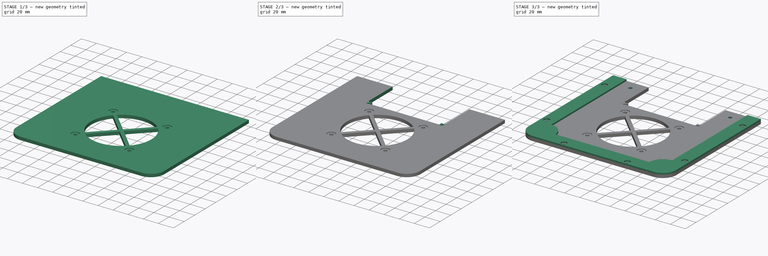
[diagram: build sequence overview — one tinted view per stage of 3, left to right]
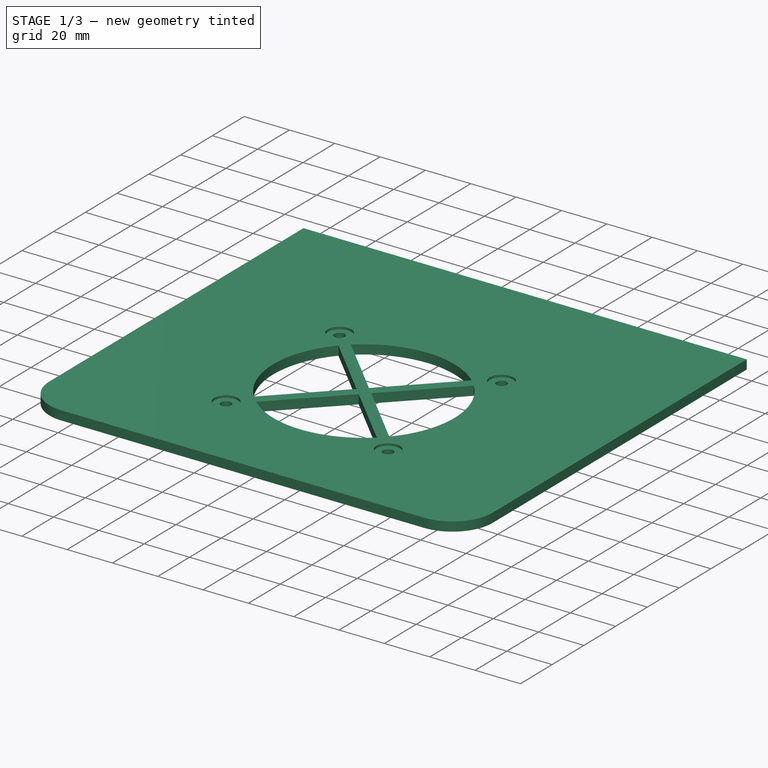
[diagram: stage 1 of 3 — iso view after this stage's code; geometry added in this stage tinted green]
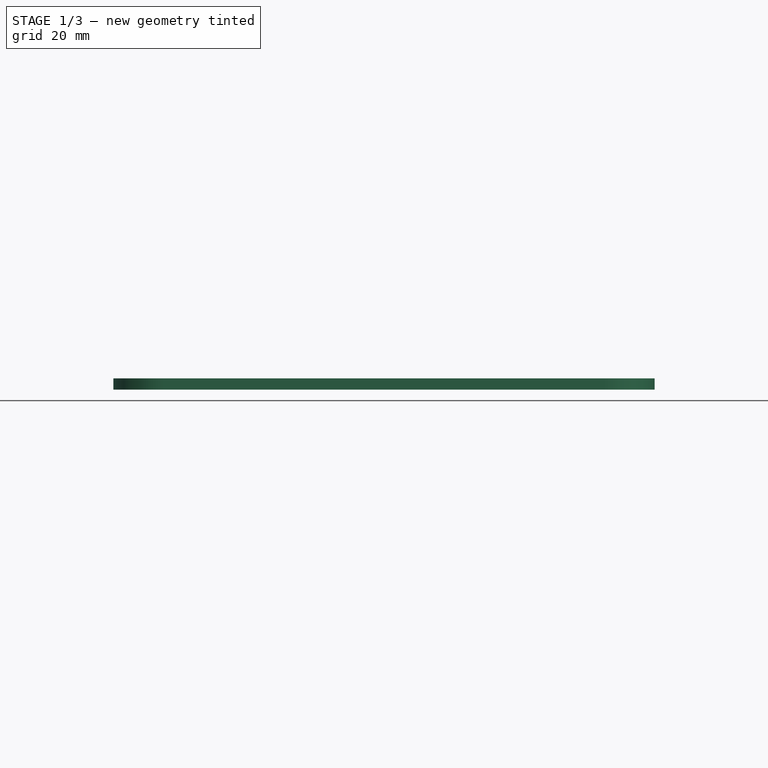
[diagram: stage 1 of 3 — front view after this stage's code; geometry added in this stage tinted green]
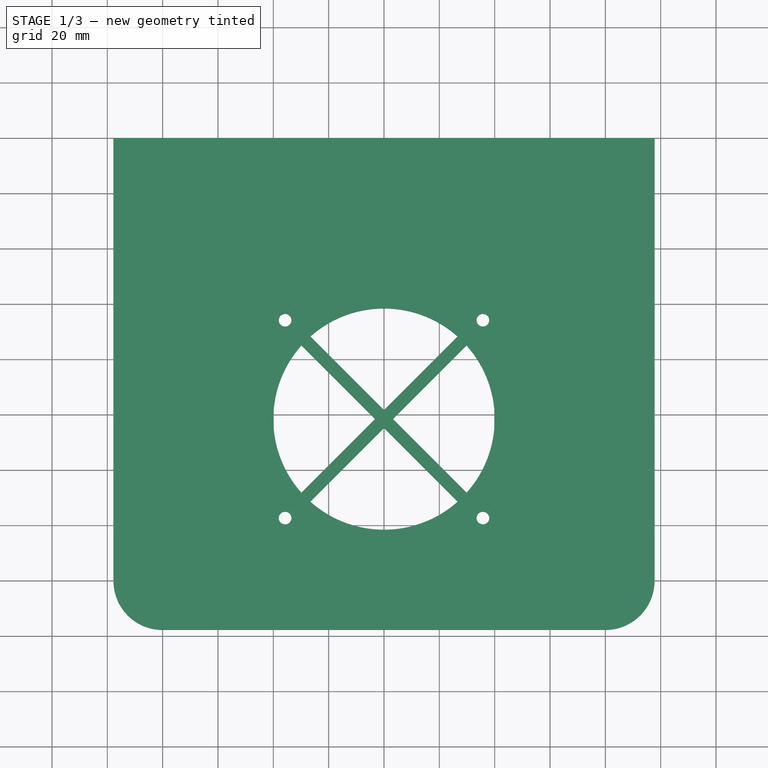
[diagram: stage 1 of 3 — top view after this stage's code; geometry added in this stage tinted green]
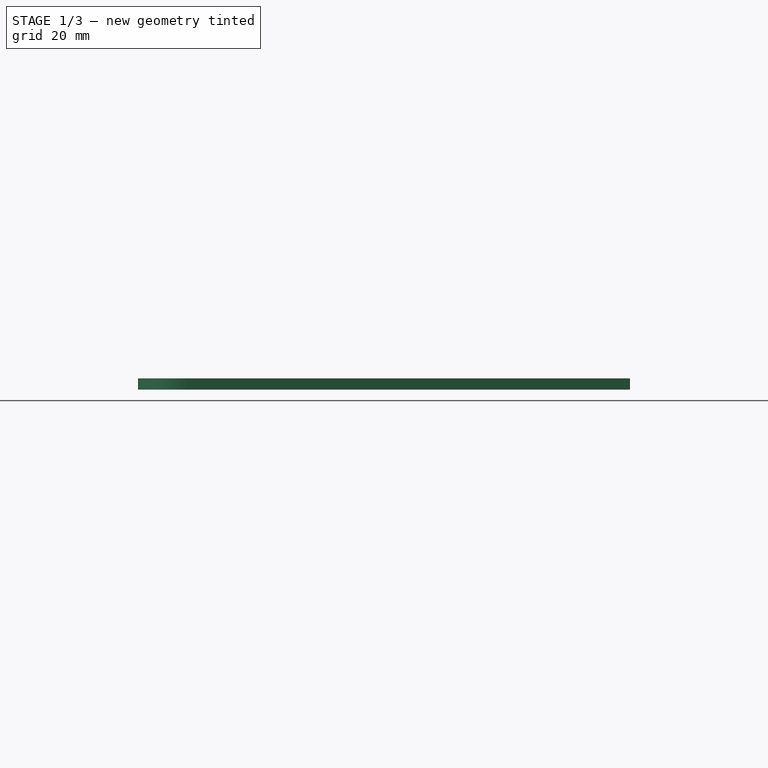
[diagram: stage 1 of 3 — right view after this stage's code; geometry added in this stage tinted green]
FCSTD DOCUMENT  (FreeCAD 0.18R16117 (Git))
Label: top1
License: All rights reserved
LicenseURL: http://en.wikipedia.org/wiki/All_rights_reserved
objects: Sketcher::SketchObject×8, PartDesign::Pocket×3, PartDesign::Hole×3, PartDesign::Pad×2, PartDesign::Body×1
note: 25 computed .brp shape members not serialized (recipe doc carries the construction recipe); baked Part::Feature solids carry a one-line shape summary decoded from their .brp

FEATURE [Sketcher::SketchObject] Sketch
  MapMode = 5
  Support = -> [XY_Plane]
  sketch-geometry (24):
    g0: LineSegment [constr] StartX=-80.01 StartY=80.01 StartZ=0 EndX=80.01 EndY=80.01 EndZ=0
    g1: LineSegment [constr] StartX=80.01 StartY=80.01 StartZ=0 EndX=80.01 EndY=-80.01 EndZ=0
    g2: LineSegment [constr] StartX=80.01 StartY=-80.01 StartZ=0 EndX=-80.01 EndY=-80.01 EndZ=0
    g3: LineSegment [constr] StartX=-80.01 StartY=-80.01 StartZ=0 EndX=-80.01 EndY=80.01 EndZ=0
    g4: LineSegment [constr] StartX=-80.01 StartY=-80.01 StartZ=0 EndX=80.01 EndY=-80.01 EndZ=0
    g5: LineSegment [constr] StartX=80.01 StartY=-80.01 StartZ=0 EndX=80.01 EndY=-97.79 EndZ=0
    g6: LineSegment [constr] StartX=80.01 StartY=-97.79 StartZ=0 EndX=-80.01 EndY=-97.79 EndZ=0
    g7: LineSegment [constr] StartX=-80.01 StartY=-97.79 StartZ=0 EndX=-80.01 EndY=-80.01 EndZ=0
    g8: LineSegment [constr] StartX=80.01 StartY=-80.01 StartZ=0 EndX=97.79 EndY=-80.01 EndZ=0
    g9: LineSegment [constr] StartX=97.79 StartY=-80.01 StartZ=0 EndX=97.79 EndY=80.01 EndZ=0
    g10: LineSegment [constr] StartX=97.79 StartY=80.01 StartZ=0 EndX=80.01 EndY=80.01 EndZ=0
    g11: LineSegment [constr] StartX=80.01 StartY=80.01 StartZ=0 EndX=80.01 EndY=-80.01 EndZ=0
    g12: LineSegment [constr] StartX=-80.01 StartY=-80.01 StartZ=0 EndX=-97.79 EndY=-80.01 EndZ=0
    g13: LineSegment [constr] StartX=-97.79 StartY=-80.01 StartZ=0 EndX=-97.79 EndY=80.01 EndZ=0
    g14: LineSegment [constr] StartX=-97.79 StartY=80.01 StartZ=0 EndX=-80.01 EndY=80.01 EndZ=0
    g15: LineSegment [constr] StartX=-80.01 StartY=80.01 StartZ=0 EndX=-80.01 EndY=-80.01 EndZ=0
    g16: LineSegment [constr] StartX=-80.01 StartY=80.01 StartZ=0 EndX=80.01 EndY=-80.01 EndZ=0
    g17: LineSegment [constr] StartX=80.01 StartY=80.01 StartZ=0 EndX=-80.01 EndY=-80.01 EndZ=0
    g18: LineSegment StartX=-97.79 StartY=80.01 StartZ=0 EndX=-97.79 EndY=-80.01 EndZ=0
    g19: LineSegment StartX=-80.01 StartY=-97.79 StartZ=0 EndX=80.01 EndY=-97.79 EndZ=0
    g20: ArcOfCircle CenterX=-80.01 CenterY=-80.01 CenterZ=0 NormalX=0 NormalY=0 NormalZ=1 AngleXU=0 Radius=17.78 StartAngle=3.14159 EndAngle=4.71239
    g21: ArcOfCircle CenterX=80.01 CenterY=-80.01 CenterZ=0 NormalX=0 NormalY=0 NormalZ=1 AngleXU=0 Radius=17.78 StartAngle=4.71239 EndAngle=6.28319
    g22: LineSegment StartX=97.79 StartY=-80.01 StartZ=0 EndX=97.79 EndY=80.01 EndZ=0
    g23: LineSegment StartX=-97.79 StartY=80.01 StartZ=0 EndX=97.79 EndY=80.01 EndZ=0
  constraints (59):
    c: Coincident(g0,g1)
    c: Coincident(g1,g2)
    c: Coincident(g2,g3)
    c: Coincident(g3,g0)
    c: Horizontal(g0)
    c: Vertical(g1)
    c: Coincident(g4,g5)
    c: Coincident(g5,g6)
    c: Coincident(g6,g7)
    c: Coincident(g7,g4)
    c: Vertical(g5)
    c: Vertical(g7)
    c: Coincident(g4,g2)
    c: Coincident(g8,g9)
    c: Coincident(g9,g10)
    c: Coincident(g10,g11)
    c: Coincident(g11,g8)
    c: Horizontal(g8)
    c: Horizontal(g10)
    c: Vertical(g9)
    c: Coincident(g8,g1)
    c: Coincident(g12,g13)
    c: Coincident(g13,g14)
    c: Coincident(g14,g15)
    c: Coincident(g15,g12)
    c: Horizontal(g12)
    c: Horizontal(g14)
    c: Vertical(g13)
    c: Coincident(g12,g2)
    c: Coincident(g14,g0)
    c: Coincident(g0,g10)
    c: Coincident(g4,g1)
    c: Coincident(g16,g0)
    c: Coincident(g16,g1)
    c: Coincident(g17,g0)
    c: Coincident(g17,g2)
    c: PointOnObject(g-1,g17)
    c: PointOnObject(g-1,g16)
    c: Equal(g12,g7)
    c: Equal(g7,g8)
    c: Distance(g0) = 160.02
    c: Distance(g10) = 17.78
    c: Coincident(g18,g13)
    c: Coincident(g18,g12)
    c: Equal(g1,g0)
    c: Equal(g0,g3)
    c: Equal(g3,g2)
    c: Coincident(g19,g6)
    c: Coincident(g19,g5)
    c: Coincident(g20,g2)
    c: Coincident(g20,g18)
    c: Coincident(g20,g19)
    c: Coincident(g21,g1)
    c: Coincident(g21,g19)
    c: Coincident(g21,g8)
    c: Coincident(g22,g21)
    c: Coincident(g22,g9)
    c: Coincident(g23,g18)
    c: Coincident(g23,g22)
FEATURE [PartDesign::Pad] Pad
  Length = 4.064
  Length2 = 100
  Profile = -> Sketch
  Type = 0
FEATURE [Sketcher::SketchObject] Sketch001
  ExternalGeometry = -> [Pad]
  MapMode = 5
  Placement = pos=(0,0,4.064) rot=(0,0,1;0rad)
  Support = -> [Pad]
  sketch-geometry (25):
    g0: LineSegment [constr] StartX=-97.79 StartY=-21.59 StartZ=0 EndX=1.42e-14 EndY=-21.59 EndZ=0
    g1: LineSegment [constr] StartX=1.56e-14 StartY=-21.59 StartZ=0 EndX=97.79 EndY=-21.59 EndZ=0
    g2: LineSegment [constr] StartX=1.56e-14 StartY=-21.59 StartZ=0 EndX=1.56e-14 EndY=-97.79 EndZ=0
    g3: Circle [constr] CenterX=1.56e-14 CenterY=-21.59 CenterZ=0 NormalX=0 NormalY=0 NormalZ=1 AngleXU=0 Radius=40.005
    g4: LineSegment [constr] StartX=-29.858 StartY=5.03514 StartZ=0 EndX=26.6251 EndY=-51.448 EndZ=0
    g5: LineSegment [constr] StartX=-26.6251 StartY=8.26803 StartZ=0 EndX=29.858 EndY=-48.2151 EndZ=0
    g6: LineSegment [constr] StartX=-29.858 StartY=-48.2151 StartZ=0 EndX=26.6251 EndY=8.26803 EndZ=0
    g7: LineSegment [constr] StartX=-26.6251 StartY=-51.448 StartZ=0 EndX=29.858 EndY=5.03514 EndZ=0
    g8: GeomPoint X=-3.23289 Y=-21.59 Z=0
    g9: GeomPoint X=3.23289 Y=-21.59 Z=0
    g10: GeomPoint X=1.56e-14 Y=-24.8229 Z=0
    g11: LineSegment [constr] StartX=1.56e-14 StartY=-21.59 StartZ=0 EndX=1.56e-14 EndY=18.415 EndZ=0
    g12: GeomPoint X=1.56e-14 Y=-18.3571 Z=0
    g13: ArcOfCircle CenterX=1.56e-14 CenterY=-21.59 CenterZ=0 NormalX=0 NormalY=0 NormalZ=1 AngleXU=0 Radius=40.005 StartAngle=2.41337 EndAngle=3.86982
    g14: ArcOfCircle CenterX=1.56e-14 CenterY=-21.59 CenterZ=0 NormalX=0 NormalY=0 NormalZ=1 AngleXU=0 Radius=40.005 StartAngle=0.842572 EndAngle=2.29902
    g15: ArcOfCircle CenterX=1.56e-14 CenterY=-21.59 CenterZ=0 NormalX=0 NormalY=0 NormalZ=1 AngleXU=0 Radius=40.005 StartAngle=5.55496 EndAngle=7.01141
    g16: ArcOfCircle CenterX=1.56e-14 CenterY=-21.59 CenterZ=0 NormalX=0 NormalY=0 NormalZ=1 AngleXU=0 Radius=40.005 StartAngle=3.98416 EndAngle=5.44061
    g17: LineSegment StartX=-29.858 StartY=-48.2151 StartZ=0 EndX=-3.23289 EndY=-21.59 EndZ=0
    g18: LineSegment StartX=-3.23289 StartY=-21.59 StartZ=0 EndX=-29.858 EndY=5.03514 EndZ=0
    g19: LineSegment StartX=-26.6251 StartY=8.26803 StartZ=0 EndX=1.42e-14 EndY=-18.3571 EndZ=0
    g20: LineSegment StartX=1.56e-14 StartY=-18.3571 StartZ=0 EndX=26.6251 EndY=8.26803 EndZ=0
    g21: LineSegment StartX=3.23289 StartY=-21.59 StartZ=0 EndX=29.858 EndY=5.03514 EndZ=0
    g22: LineSegment StartX=1.56e-14 StartY=-24.8229 StartZ=0 EndX=-26.6251 EndY=-51.448 EndZ=0
    g23: LineSegment StartX=1.56e-14 StartY=-24.8229 StartZ=0 EndX=26.6251 EndY=-51.448 EndZ=0
    g24: LineSegment StartX=3.23289 StartY=-21.59 StartZ=0 EndX=29.858 EndY=-48.2151 EndZ=0
  constraints (67):
    c: PointOnObject(g0,g-3)
    c: Horizontal(g0)
    c: Coincident(g1,g0)
    c: PointOnObject(g1,g-5)
    c: Horizontal(g1)
    c: Equal(g1,g0)
    c: Coincident(g2,g0)
    c: PointOnObject(g2,g-4)
    c: Vertical(g2)
    c: Distance(g2) = 76.2
    c: Coincident(g3,g0)
    c: Diameter(g3) = 80.01
    c: PointOnObject(g4,g3)
    c: PointOnObject(g4,g3)
    c: PointOnObject(g5,g3)
    c: PointOnObject(g5,g3)
    c: PointOnObject(g6,g3)
    c: PointOnObject(g6,g3)
    c: PointOnObject(g7,g3)
    c: PointOnObject(g7,g3)
    c: Perpendicular(g5,g6)
    c: Perpendicular(g6,g4)
    c: Perpendicular(g5,g7)
    c: PointOnObject(g8,g0)
    c: PointOnObject(g8,g4)
    c: PointOnObject(g8,g6)
    c: PointOnObject(g9,g7)
    c: PointOnObject(g9,g1)
    c: PointOnObject(g9,g5)
    c: PointOnObject(g10,g4)
    c: PointOnObject(g10,g7)
    c: PointOnObject(g10,g2)
    c: Coincident(g11,g0)
    c: PointOnObject(g11,g3)
    c: Vertical(g11)
    c: PointOnObject(g12,g11)
    c: PointOnObject(g12,g6)
    c: PointOnObject(g12,g5)
    c: Distance(g4,g5) = 4.572
    c: Coincident(g13,g0)
    c: Coincident(g13,g4)
    c: PointOnObject(g13,g6)
    c: Coincident(g14,g13)
    c: Coincident(g14,g5)
    c: PointOnObject(g14,g6)
    c: Coincident(g15,g13)
    c: Coincident(g15,g7)
    c: PointOnObject(g15,g5)
    c: Coincident(g16,g13)
    c: Coincident(g16,g4)
    c: PointOnObject(g16,g7)
    c: Coincident(g17,g13)
    c: Coincident(g17,g8)
    c: Coincident(g18,g8)
    c: Coincident(g18,g13)
    c: Coincident(g19,g14)
    c: Coincident(g19,g12)
    c: Coincident(g20,g12)
    c: Coincident(g20,g14)
    c: Coincident(g21,g9)
    c: Coincident(g21,g15)
    c: Coincident(g22,g10)
    c: Coincident(g22,g16)
    c: Coincident(g23,g10)
    c: Coincident(g23,g16)
    c: Coincident(g24,g9)
    c: Coincident(g24,g15)
FEATURE [PartDesign::Pocket] Pocket
  BaseFeature = -> Pad
  Length = 4.064
  Length2 = 100
  Profile = -> Sketch001
  Type = 0
FEATURE [Sketcher::SketchObject] Sketch002
  ExternalGeometry = -> [Pocket]
  MapMode = 5
  Placement = pos=(0,0,4.064) rot=(0,0,1;0rad)
  Support = -> [Pocket]
  sketch-geometry (9):
    g0: LineSegment [constr] StartX=35.7505 StartY=-57.3405 StartZ=0 EndX=35.7505 EndY=14.1605 EndZ=0
    g1: LineSegment [constr] StartX=35.7505 StartY=14.1605 StartZ=0 EndX=-35.7505 EndY=14.1605 EndZ=0
    g2: LineSegment [constr] StartX=-35.7505 StartY=14.1605 StartZ=0 EndX=-35.7505 EndY=-57.3405 EndZ=0
    g3: LineSegment [constr] StartX=-35.7505 StartY=-57.3405 StartZ=0 EndX=35.7505 EndY=-57.3405 EndZ=0
    g4: Circle [constr] CenterX=1.56e-14 CenterY=-21.59 CenterZ=0 NormalX=0 NormalY=0 NormalZ=1 AngleXU=0 Radius=50.5588
    g5: Circle CenterX=-35.7505 CenterY=14.1605 CenterZ=0 NormalX=0 NormalY=0 NormalZ=1 AngleXU=0 Radius=2.286
    g6: Circle CenterX=35.7505 CenterY=14.1605 CenterZ=0 NormalX=0 NormalY=0 NormalZ=1 AngleXU=0 Radius=2.286
    g7: Circle CenterX=35.7505 CenterY=-57.3405 CenterZ=0 NormalX=0 NormalY=0 NormalZ=1 AngleXU=0 Radius=2.286
    g8: Circle CenterX=-35.7505 CenterY=-57.3405 CenterZ=0 NormalX=0 NormalY=0 NormalZ=1 AngleXU=0 Radius=2.286
  constraints (22):
    c: Coincident(g0,g1)
    c: Coincident(g1,g2)
    c: Coincident(g2,g3)
    c: Coincident(g3,g0)
    c: Equal(g0,g1)
    c: Equal(g0,g2)
    c: Equal(g0,g3)
    c: PointOnObject(g0,g4)
    c: PointOnObject(g1,g4)
    c: PointOnObject(g2,g4)
    c: PointOnObject(g3,g4)
    c: Coincident(g4,g-6)
    c: Horizontal(g1)
    c: Distance(g1) = 71.501
    c: Coincident(g5,g1)
    c: Coincident(g6,g0)
    c: Coincident(g7,g0)
    c: Coincident(g8,g2)
    c: Equal(g8,g5)
    c: Equal(g5,g6)
    c: Equal(g6,g7)
    c: Diameter(g5) = 4.572
FEATURE [PartDesign::Hole] Hole
  BaseFeature = -> Pocket
  Depth = 635
  DepthType = 0
  Diameter = 4.572
  DrillPoint = 1
  DrillPointAngle = 118
  HoleCutCountersinkAngle = 90
  HoleCutDepth = 1.016
  HoleCutDiameter = 10.414
  HoleCutType = 1
  ModelActualThread = false
  Profile = -> Sketch002
  Tapered = false
  TaperedAngle = 90
  ThreadAngle = 0
  ThreadClass = 0
  ThreadCutOffInner = 0
  ThreadCutOffOuter = 0
  ThreadDirection = 0
  ThreadFit = 0
  ThreadPitch = 0
  ThreadSize = 0
  ThreadType = 0
  Threaded = false
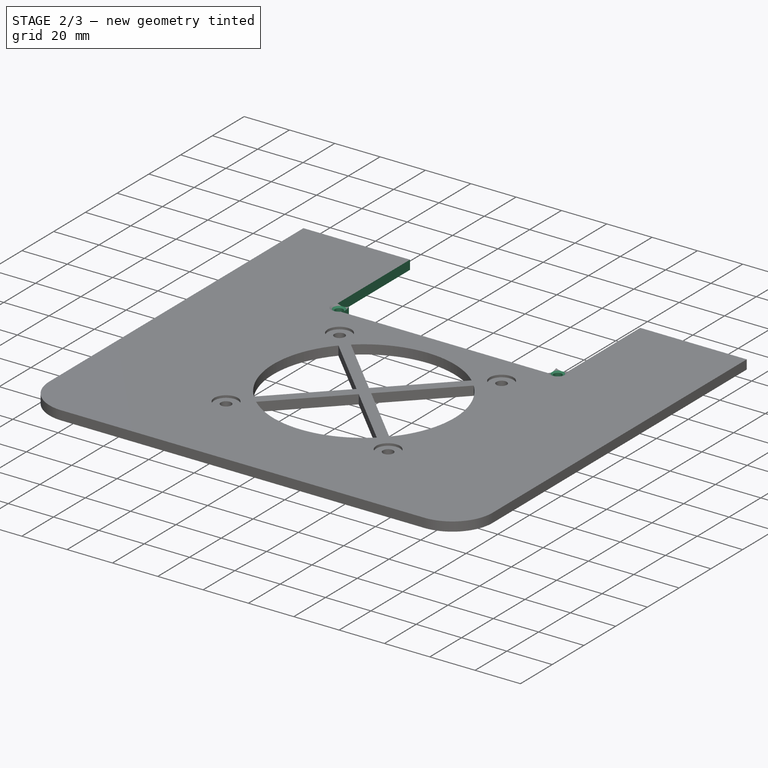
[diagram: stage 2 of 3 — iso view after this stage's code; geometry added in this stage tinted green]
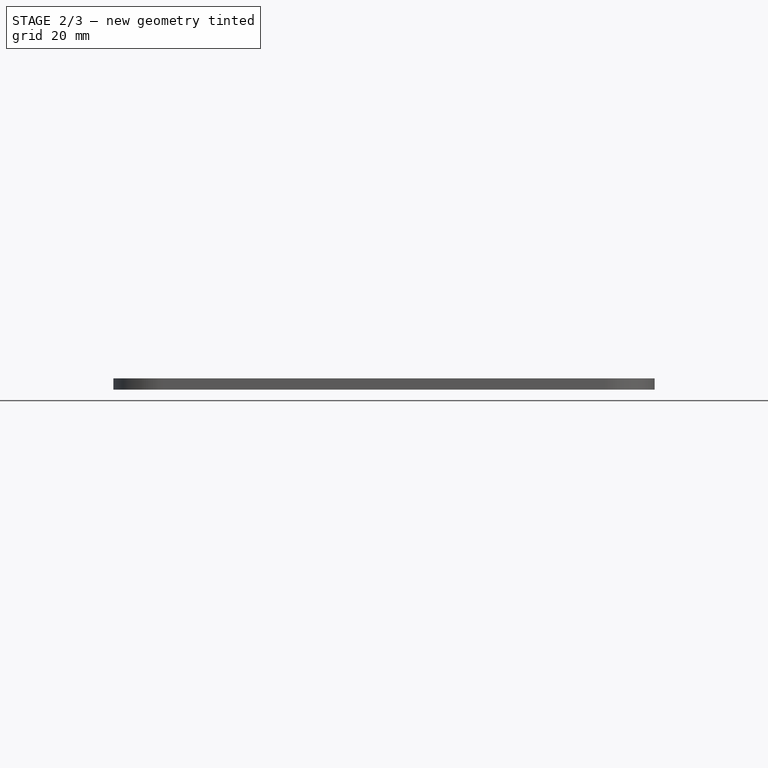
[diagram: stage 2 of 3 — front view after this stage's code; geometry added in this stage tinted green]
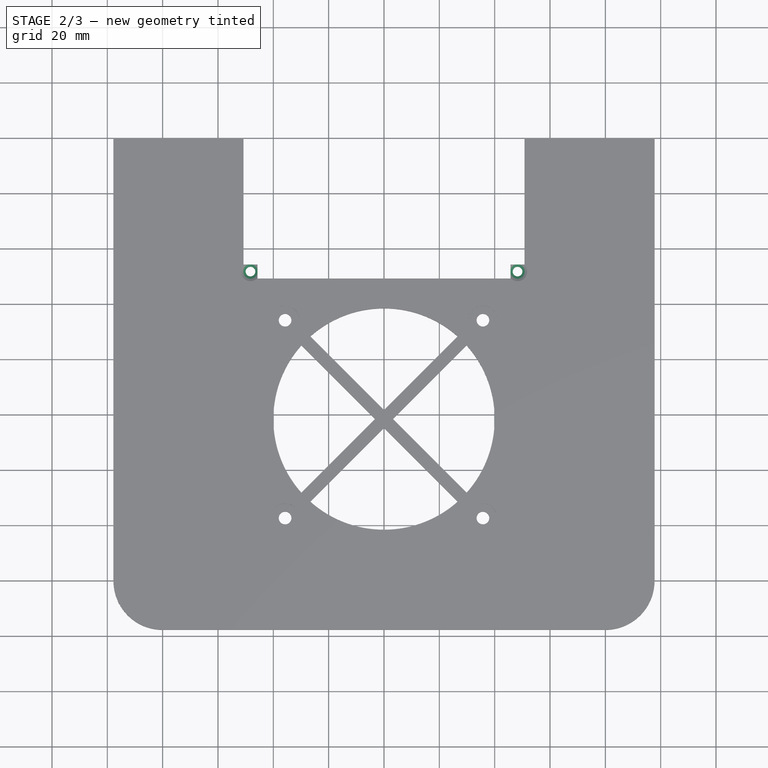
[diagram: stage 2 of 3 — top view after this stage's code; geometry added in this stage tinted green]
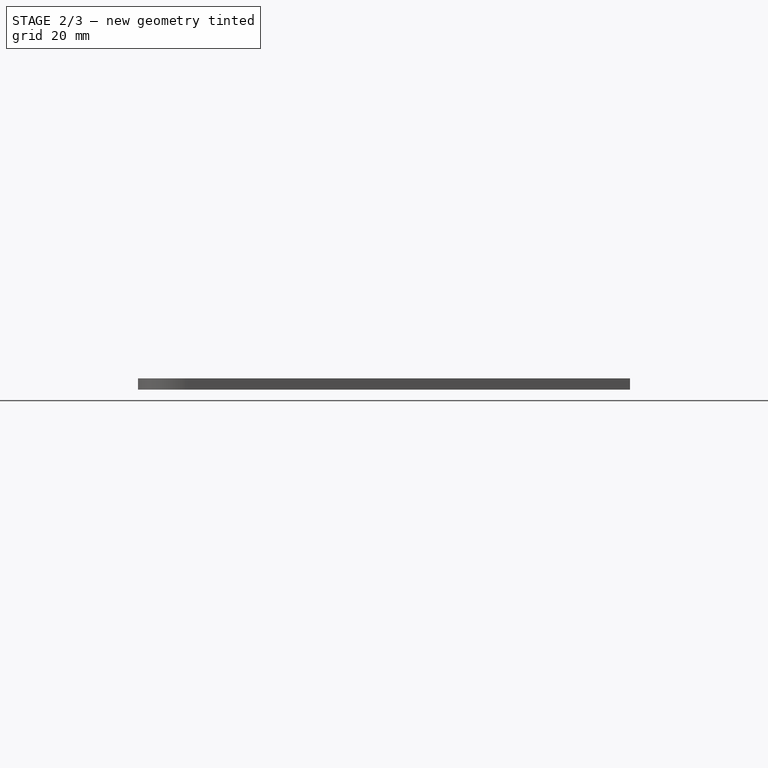
[diagram: stage 2 of 3 — right view after this stage's code; geometry added in this stage tinted green]
FEATURE [Sketcher::SketchObject] Sketch003
  ExternalGeometry = -> [Hole]
  MapMode = 5
  Placement = pos=(0,0,4.064) rot=(0,0,1;0rad)
  Support = -> [Hole]
  sketch-geometry (21):
    g0: LineSegment [constr] StartX=50.8 StartY=29.21 StartZ=0 EndX=50.8 EndY=130.81 EndZ=0
    g1: LineSegment [constr] StartX=50.8 StartY=130.81 StartZ=0 EndX=-50.8 EndY=130.81 EndZ=0
    g2: LineSegment [constr] StartX=-50.8 StartY=130.81 StartZ=0 EndX=-50.8 EndY=29.21 EndZ=0
    g3: LineSegment [constr] StartX=-50.8 StartY=29.21 StartZ=0 EndX=50.8 EndY=29.21 EndZ=0
    g4: Circle [constr] CenterX=0 CenterY=80.01 CenterZ=0 NormalX=0 NormalY=0 NormalZ=1 AngleXU=0 Radius=71.842
    g5: LineSegment [constr] StartX=-50.8 StartY=29.21 StartZ=0 EndX=-45.72 EndY=29.21 EndZ=0
    g6: LineSegment [constr] StartX=-45.72 StartY=29.21 StartZ=0 EndX=-45.72 EndY=34.29 EndZ=0
    g7: LineSegment [constr] StartX=-45.72 StartY=34.29 StartZ=0 EndX=-50.8 EndY=34.29 EndZ=0
    g8: LineSegment [constr] StartX=-50.8 StartY=34.29 StartZ=0 EndX=-50.8 EndY=29.21 EndZ=0
    g9: LineSegment [constr] StartX=50.8 StartY=29.21 StartZ=0 EndX=45.72 EndY=29.21 EndZ=0
    g10: LineSegment [constr] StartX=45.72 StartY=29.21 StartZ=0 EndX=45.72 EndY=34.29 EndZ=0
    g11: LineSegment [constr] StartX=45.72 StartY=34.29 StartZ=0 EndX=50.8 EndY=34.29 EndZ=0
    g12: LineSegment [constr] StartX=50.8 StartY=34.29 StartZ=0 EndX=50.8 EndY=29.21 EndZ=0
    g13: LineSegment StartX=-50.8 StartY=80.01 StartZ=0 EndX=-50.8 EndY=34.29 EndZ=0
    g14: LineSegment StartX=-50.8 StartY=34.29 StartZ=0 EndX=-45.72 EndY=34.29 EndZ=0
    g15: LineSegment StartX=-45.72 StartY=34.29 StartZ=0 EndX=-45.72 EndY=29.21 EndZ=0
    g16: LineSegment StartX=-45.72 StartY=29.21 StartZ=0 EndX=45.72 EndY=29.21 EndZ=0
    g17: LineSegment StartX=45.72 StartY=29.21 StartZ=0 EndX=45.72 EndY=34.29 EndZ=0
    g18: LineSegment StartX=45.72 StartY=34.29 StartZ=0 EndX=50.8 EndY=34.29 EndZ=0
    g19: LineSegment StartX=50.8 StartY=34.29 StartZ=0 EndX=50.8 EndY=80.01 EndZ=0
    g20: LineSegment StartX=50.8 StartY=80.01 StartZ=0 EndX=-50.8 EndY=80.01 EndZ=0
  constraints (55):
    c: Coincident(g0,g1)
    c: Coincident(g1,g2)
    c: Coincident(g2,g3)
    c: Coincident(g3,g0)
    c: Equal(g0,g1)
    c: Equal(g0,g2)
    c: Equal(g0,g3)
    c: PointOnObject(g0,g4)
    c: PointOnObject(g1,g4)
    c: PointOnObject(g2,g4)
    c: PointOnObject(g3,g4)
    c: Horizontal(g3)
    c: PointOnObject(g4,g-2)
    c: Distance(g3) = 101.6
    c: PointOnObject(g4,g-3)
    c: Coincident(g5,g6)
    c: Coincident(g6,g7)
    c: Coincident(g7,g8)
    c: Coincident(g8,g5)
    c: Horizontal(g5)
    c: Horizontal(g7)
    c: Vertical(g6)
    c: Vertical(g8)
    c: Coincident(g5,g2)
    c: Coincident(g9,g10)
    c: Coincident(g10,g11)
    c: Coincident(g11,g12)
    c: Coincident(g12,g9)
    c: Horizontal(g9)
    c: Horizontal(g11)
    c: Vertical(g10)
    c: Vertical(g12)
    c: Coincident(g9,g0)
    c: Equal(g11,g10)
    c: Equal(g10,g7)
    c: Equal(g7,g6)
    c: Distance(g7) = 5.08
    c: PointOnObject(g13,g-3)
    c: Coincident(g13,g7)
    c: Vertical(g13)
    c: Coincident(g14,g13)
    c: Coincident(g14,g6)
    c: Coincident(g15,g14)
    c: Coincident(g15,g5)
    c: Coincident(g16,g15)
    c: Coincident(g16,g9)
    c: Coincident(g17,g16)
    c: Coincident(g17,g10)
    c: Coincident(g18,g17)
    c: Coincident(g18,g11)
    c: Coincident(g19,g18)
    c: PointOnObject(g19,g-3)
    c: Vertical(g19)
    c: Coincident(g20,g19)
    c: Coincident(g20,g13)
FEATURE [PartDesign::Pocket] Pocket001
  BaseFeature = -> Hole
  Length = 4.064
  Length2 = 100
  Profile = -> Sketch003
  Type = 0
FEATURE [Sketcher::SketchObject] Sketch004
  ExternalGeometry = -> [Pocket001]
  MapMode = 5
  Placement = pos=(0,0,4.064) rot=(0,0,1;0rad)
  Support = -> [Pocket001]
  sketch-geometry (6):
    g0: LineSegment [constr] StartX=-50.8 StartY=34.29 StartZ=0 EndX=-45.72 EndY=29.21 EndZ=0
    g1: LineSegment [constr] StartX=-45.72 StartY=34.29 StartZ=0 EndX=-48.26 EndY=31.75 EndZ=0
    g2: LineSegment [constr] StartX=45.72 StartY=29.21 StartZ=0 EndX=50.8 EndY=34.29 EndZ=0
    g3: LineSegment [constr] StartX=45.72 StartY=34.29 StartZ=0 EndX=48.26 EndY=31.75 EndZ=0
    g4: Circle CenterX=-48.26 CenterY=31.75 CenterZ=0 NormalX=0 NormalY=0 NormalZ=1 AngleXU=0 Radius=1.778
    g5: Circle CenterX=48.26 CenterY=31.75 CenterZ=0 NormalX=0 NormalY=0 NormalZ=1 AngleXU=0 Radius=1.778
  constraints (14):
    c: Coincident(g0,g-3)
    c: Coincident(g0,g-4)
    c: Coincident(g1,g-4)
    c: PointOnObject(g1,g0)
    c: Perpendicular(g1,g0)
    c: Coincident(g2,g-6)
    c: Coincident(g2,g-5)
    c: Coincident(g3,g-6)
    c: PointOnObject(g3,g2)
    c: Perpendicular(g2,g3)
    c: Coincident(g4,g1)
    c: Coincident(g5,g3)
    c: Equal(g5,g4)
    c: Diameter(g4) = 3.556
FEATURE [PartDesign::Hole] Hole001
  BaseFeature = -> Pocket001
  Depth = 635
  DepthType = 0
  Diameter = 3.49999
  DrillPoint = 1
  DrillPointAngle = 118
  HoleCutCountersinkAngle = 120
  HoleCutDepth = 0
  HoleCutDiameter = 7.00001
  HoleCutType = 2
  ModelActualThread = false
  Profile = -> Sketch004
  Tapered = false
  TaperedAngle = 90
  ThreadAngle = 0
  ThreadClass = 0
  ThreadCutOffInner = 0
  ThreadCutOffOuter = 0
  ThreadDirection = 0
  ThreadFit = 0
  ThreadPitch = 0
  ThreadSize = 0
  ThreadType = 0
  Threaded = false
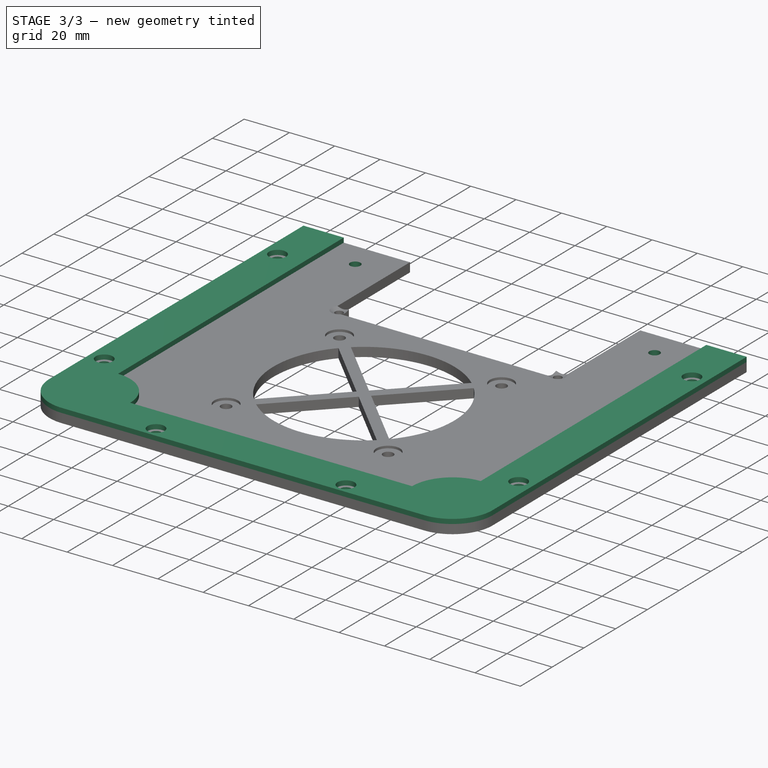
[diagram: stage 3 of 3 — iso view after this stage's code; geometry added in this stage tinted green]
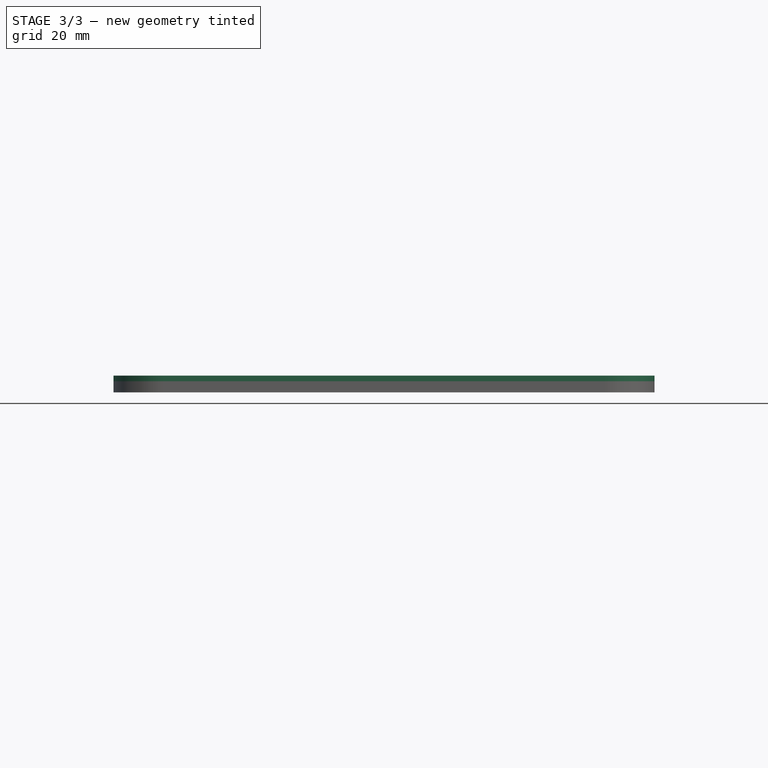
[diagram: stage 3 of 3 — front view after this stage's code; geometry added in this stage tinted green]
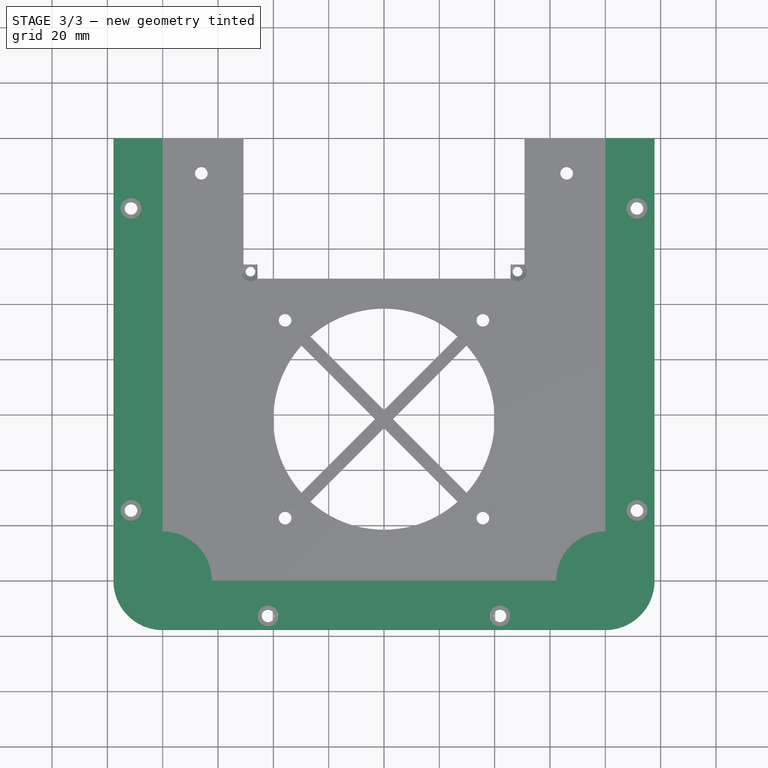
[diagram: stage 3 of 3 — top view after this stage's code; geometry added in this stage tinted green]
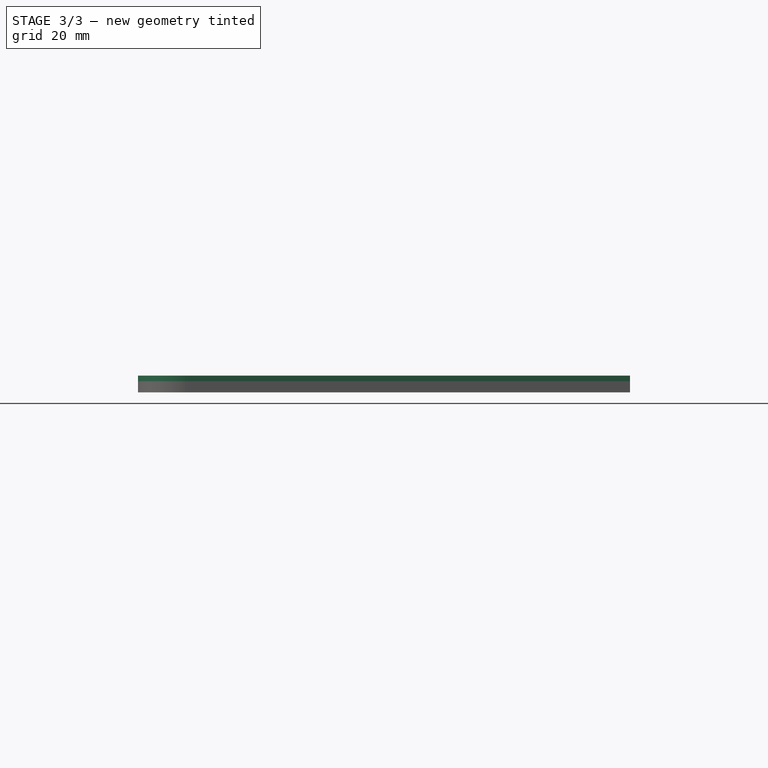
[diagram: stage 3 of 3 — right view after this stage's code; geometry added in this stage tinted green]
FEATURE [Sketcher::SketchObject] Sketch005
  ExternalGeometry = -> [Hole001]
  MapMode = 5
  Placement = pos=(0,0,4.064) rot=(0,0,1;0rad)
  Support = -> [Hole001]
  sketch-geometry (18):
    g0: LineSegment [constr] StartX=-78.74 StartY=80.01 StartZ=0 EndX=-53.34 EndY=80.01 EndZ=0
    g1: LineSegment [constr] StartX=-53.34 StartY=80.01 StartZ=0 EndX=-53.34 EndY=54.61 EndZ=0
    g2: LineSegment [constr] StartX=-53.34 StartY=54.61 StartZ=0 EndX=-78.74 EndY=54.61 EndZ=0
    g3: LineSegment [constr] StartX=-78.74 StartY=54.61 StartZ=0 EndX=-78.74 EndY=80.01 EndZ=0
    g4: LineSegment [constr] StartX=53.34 StartY=80.01 StartZ=0 EndX=78.74 EndY=80.01 EndZ=0
    g5: LineSegment [constr] StartX=78.74 StartY=80.01 StartZ=0 EndX=78.74 EndY=54.61 EndZ=0
    g6: LineSegment [constr] StartX=78.74 StartY=54.61 StartZ=0 EndX=53.34 EndY=54.61 EndZ=0
    g7: LineSegment [constr] StartX=53.34 StartY=54.61 StartZ=0 EndX=53.34 EndY=80.01 EndZ=0
    g8: LineSegment [constr] StartX=-97.79 StartY=80.01 StartZ=0 EndX=-78.74 EndY=80.01 EndZ=0
    g9: LineSegment [constr] StartX=-53.34 StartY=80.01 StartZ=0 EndX=-50.8 EndY=80.01 EndZ=0
    g10: LineSegment [constr] StartX=50.8 StartY=80.01 StartZ=0 EndX=53.34 EndY=80.01 EndZ=0
    g11: LineSegment [constr] StartX=78.74 StartY=80.01 StartZ=0 EndX=97.79 EndY=80.01 EndZ=0
    g12: LineSegment [constr] StartX=-78.74 StartY=80.01 StartZ=0 EndX=-53.34 EndY=54.61 EndZ=0
    g13: LineSegment [constr] StartX=-78.74 StartY=54.61 StartZ=0 EndX=-53.34 EndY=80.01 EndZ=0
    g14: LineSegment [constr] StartX=53.34 StartY=80.01 StartZ=0 EndX=78.74 EndY=54.61 EndZ=0
    g15: LineSegment [constr] StartX=78.74 StartY=80.01 StartZ=0 EndX=53.34 EndY=54.61 EndZ=0
    g16: Circle CenterX=66.04 CenterY=67.31 CenterZ=0 NormalX=0 NormalY=0 NormalZ=1 AngleXU=0 Radius=2.286
    g17: Circle CenterX=-66.04 CenterY=67.31 CenterZ=0 NormalX=0 NormalY=0 NormalZ=1 AngleXU=0 Radius=2.286
  constraints (46):
    c: Coincident(g0,g1)
    c: Coincident(g1,g2)
    c: Coincident(g2,g3)
    c: Coincident(g3,g0)
    c: Horizontal(g0)
    c: Horizontal(g2)
    c: Vertical(g1)
    c: Vertical(g3)
    c: PointOnObject(g0,g-3)
    c: Coincident(g4,g5)
    c: Coincident(g5,g6)
    c: Coincident(g6,g7)
    c: Coincident(g7,g4)
    c: Horizontal(g4)
    c: Horizontal(g6)
    c: Vertical(g5)
    c: PointOnObject(g4,g-4)
    c: Equal(g2,g1)
    c: Equal(g1,g6)
    c: Equal(g6,g5)
    c: Distance(g3) = 25.4
    c: Coincident(g8,g-3)
    c: Coincident(g8,g0)
    c: Coincident(g9,g0)
    c: Coincident(g9,g-3)
    c: Coincident(g10,g-4)
    c: Coincident(g10,g4)
    c: Coincident(g11,g4)
    c: Coincident(g11,g-4)
    c: Equal(g11,g8)
    c: Coincident(g12,g0)
    c: Coincident(g12,g1)
    c: Coincident(g13,g2)
    c: Coincident(g13,g0)
    c: Coincident(g14,g4)
    c: Coincident(g14,g5)
    c: Coincident(g15,g4)
    c: Coincident(g15,g6)
    c: PointOnObject(g16,g14)
    c: PointOnObject(g17,g13)
    c: PointOnObject(g17,g12)
    c: PointOnObject(g16,g15)
    c: Equal(g16,g17)
    c: Diameter(g17) = 4.572
    c: Vertical(g7)
    c: Distance(g8) = 19.05
FEATURE [PartDesign::Pocket] Pocket002
  BaseFeature = -> Hole001
  Length = 4.064
  Length2 = 100
  Profile = -> Sketch005
  Type = 0
FEATURE [Sketcher::SketchObject] Sketch006
  ExternalGeometry = -> [Pocket002]
  MapMode = 5
  Placement = pos=(0,0,4.064) rot=(0,0,1;0rad)
  Support = -> [Pocket002]
  sketch-geometry (21):
    g0: LineSegment [constr] StartX=-80.01 StartY=80.01 StartZ=0 EndX=-80.01 EndY=-80.01 EndZ=0
    g1: LineSegment [constr] StartX=-80.01 StartY=-80.01 StartZ=0 EndX=80.01 EndY=-80.01 EndZ=0
    g2: LineSegment [constr] StartX=80.01 StartY=-80.01 StartZ=0 EndX=80.01 EndY=80.01 EndZ=0
    g3: ArcOfCircle [constr] CenterX=-80.01 CenterY=-80.01 CenterZ=0 NormalX=0 NormalY=0 NormalZ=1 AngleXU=0 Radius=17.78 StartAngle=2e-16 EndAngle=1.5708
    g4: ArcOfCircle [constr] CenterX=80.01 CenterY=-80.01 CenterZ=0 NormalX=0 NormalY=0 NormalZ=1 AngleXU=0 Radius=17.78 StartAngle=1.5708 EndAngle=3.14159
    g5: LineSegment [constr] StartX=-97.79 StartY=-80.01 StartZ=0 EndX=-80.01 EndY=-80.01 EndZ=0
    g6: LineSegment [constr] StartX=-80.01 StartY=-80.01 StartZ=0 EndX=-80.01 EndY=-97.79 EndZ=0
    g7: LineSegment [constr] StartX=80.01 StartY=-80.01 StartZ=0 EndX=80.01 EndY=-97.79 EndZ=0
    g8: LineSegment [constr] StartX=80.01 StartY=-80.01 StartZ=0 EndX=97.79 EndY=-80.01 EndZ=0
    g9: LineSegment StartX=-97.79 StartY=80.01 StartZ=0 EndX=-80.01 EndY=80.01 EndZ=0
    g10: ArcOfCircle CenterX=-80.01 CenterY=-80.01 CenterZ=0 NormalX=0 NormalY=0 NormalZ=1 AngleXU=0 Radius=17.78 StartAngle=2e-16 EndAngle=1.5708
    g11: ArcOfCircle CenterX=80.01 CenterY=-80.01 CenterZ=0 NormalX=0 NormalY=0 NormalZ=1 AngleXU=0 Radius=17.78 StartAngle=1.5708 EndAngle=3.14159
    g12: LineSegment StartX=-80.01 StartY=80.01 StartZ=0 EndX=-80.01 EndY=-62.23 EndZ=0
    g13: LineSegment StartX=-62.23 StartY=-80.01 StartZ=0 EndX=62.23 EndY=-80.01 EndZ=0
    g14: LineSegment StartX=80.01 StartY=-62.23 StartZ=0 EndX=80.01 EndY=80.01 EndZ=0
    g15: LineSegment StartX=80.01 StartY=80.01 StartZ=0 EndX=97.79 EndY=80.01 EndZ=0
    g16: LineSegment StartX=97.79 StartY=80.01 StartZ=0 EndX=97.79 EndY=-80.01 EndZ=0
    g17: ArcOfCircle CenterX=80.01 CenterY=-80.01 CenterZ=0 NormalX=0 NormalY=0 NormalZ=1 AngleXU=0 Radius=17.78 StartAngle=4.71239 EndAngle=6.28319
    g18: ArcOfCircle CenterX=-80.01 CenterY=-80.01 CenterZ=0 NormalX=0 NormalY=0 NormalZ=1 AngleXU=0 Radius=17.78 StartAngle=3.14159 EndAngle=4.71239
    g19: LineSegment StartX=80.01 StartY=-97.79 StartZ=0 EndX=-80.01 EndY=-97.79 EndZ=0
    g20: LineSegment StartX=-97.79 StartY=-80.01 StartZ=0 EndX=-97.79 EndY=80.01 EndZ=0
  constraints (52):
    c: PointOnObject(g0,g-3)
    c: Coincident(g0,g-5)
    c: Vertical(g0)
    c: Coincident(g1,g0)
    c: Coincident(g1,g-7)
    c: Coincident(g2,g1)
    c: PointOnObject(g2,g-9)
    c: Vertical(g2)
    c: Coincident(g3,g0)
    c: PointOnObject(g3,g0)
    c: PointOnObject(g3,g1)
    c: Coincident(g4,g1)
    c: PointOnObject(g4,g1)
    c: PointOnObject(g4,g2)
    c: Equal(g-5,g3)
    c: Equal(g4,g-7)
    c: Coincident(g5,g-5)
    c: Coincident(g5,g0)
    c: Coincident(g6,g0)
    c: Coincident(g6,g-6)
    c: Coincident(g7,g1)
    c: Coincident(g7,g-7)
    c: Coincident(g8,g1)
    c: Coincident(g8,g-8)
    c: Coincident(g9,g-4)
    c: Coincident(g9,g0)
    c: Coincident(g10,g0)
    c: Coincident(g10,g3)
    c: PointOnObject(g10,g1)
    c: Coincident(g11,g1)
    c: Coincident(g11,g4)
    c: PointOnObject(g11,g2)
    c: Coincident(g12,g9)
    c: Coincident(g12,g10)
    c: Coincident(g13,g10)
    c: Coincident(g13,g11)
    c: Coincident(g14,g11)
    c: Coincident(g14,g2)
    c: Coincident(g15,g14)
    c: Coincident(g15,g-9)
    c: Coincident(g16,g15)
    c: Coincident(g16,g8)
    c: Coincident(g17,g11)
    c: Coincident(g17,g16)
    c: PointOnObject(g17,g7)
    c: Coincident(g18,g10)
    c: Coincident(g18,g5)
    c: PointOnObject(g18,g6)
    c: Coincident(g19,g17)
    c: Coincident(g19,g18)
    c: Coincident(g20,g18)
    c: Coincident(g20,g9)
FEATURE [PartDesign::Pad] Pad001
  BaseFeature = -> Pocket002
  Length = 2.032
  Length2 = 100
  Profile = -> Sketch006
  Type = 0
FEATURE [Sketcher::SketchObject] Sketch007
  ExternalGeometry = -> [Pad001]
  MapMode = 5
  Placement = pos=(0,0,6.096) rot=(0,0,1;0rad)
  Support = -> [Pad001]
  sketch-geometry (30):
    g0: LineSegment [constr] StartX=-91.44 StartY=80.01 StartZ=0 EndX=-91.44 EndY=54.61 EndZ=0
    g1: LineSegment [constr] StartX=-91.44 StartY=54.61 StartZ=0 EndX=-91.44 EndY=-54.61 EndZ=0
    g2: LineSegment [constr] StartX=-80.01 StartY=-80.01 StartZ=0 EndX=-97.79 EndY=-80.01 EndZ=0
    g3: LineSegment [constr] StartX=-80.01 StartY=-80.01 StartZ=0 EndX=-80.01 EndY=-62.23 EndZ=0
    g4: LineSegment [constr] StartX=-91.44 StartY=-54.61 StartZ=0 EndX=-91.44 EndY=-80.01 EndZ=0
    g5: LineSegment [constr] StartX=-91.44 StartY=54.61 StartZ=0 EndX=-97.79 EndY=54.61 EndZ=0
    g6: LineSegment [constr] StartX=-91.44 StartY=54.61 StartZ=0 EndX=-80.01 EndY=54.61 EndZ=0
    g7: LineSegment [constr] StartX=-80.01 StartY=-80.01 StartZ=0 EndX=-62.23 EndY=-80.01 EndZ=0
    g8: LineSegment [constr] StartX=-62.23 StartY=-80.01 StartZ=0 EndX=62.23 EndY=-80.01 EndZ=0
    g9: LineSegment [constr] StartX=62.23 StartY=-80.01 StartZ=0 EndX=80.01 EndY=-80.01 EndZ=0
    g10: LineSegment [constr] StartX=80.01 StartY=-80.01 StartZ=0 EndX=80.01 EndY=-62.23 EndZ=0
    g11: LineSegment [constr] StartX=80.01 StartY=-80.01 StartZ=0 EndX=80.01 EndY=-97.79 EndZ=0
    g12: LineSegment [constr] StartX=-80.01 StartY=-80.01 StartZ=0 EndX=-80.01 EndY=-97.79 EndZ=0
    g13: LineSegment [constr] StartX=80.01 StartY=-62.23 StartZ=0 EndX=80.01 EndY=80.01 EndZ=0
    g14: LineSegment [constr] StartX=-80.01 StartY=54.61 StartZ=0 EndX=80.01 EndY=54.61 EndZ=0
    g15: LineSegment [constr] StartX=91.44 StartY=80.01 StartZ=0 EndX=91.44 EndY=54.61 EndZ=0
    g16: LineSegment [constr] StartX=91.44 StartY=54.61 StartZ=0 EndX=80.01 EndY=54.61 EndZ=0
    g17: LineSegment [constr] StartX=91.44 StartY=54.61 StartZ=0 EndX=91.44 EndY=-54.61 EndZ=0
    g18: LineSegment [constr] StartX=80.01 StartY=-80.01 StartZ=0 EndX=97.79 EndY=-80.01 EndZ=0
    g19: LineSegment [constr] StartX=91.44 StartY=-54.61 StartZ=0 EndX=91.44 EndY=-80.01 EndZ=0
    g20: LineSegment [constr] StartX=-80.01 StartY=-92.71 StartZ=0 EndX=-41.91 EndY=-92.71 EndZ=0
    g21: LineSegment [constr] StartX=-41.91 StartY=-92.71 StartZ=0 EndX=41.91 EndY=-92.71 EndZ=0
    g22: LineSegment [constr] StartX=41.91 StartY=-92.71 StartZ=0 EndX=80.01 EndY=-92.71 EndZ=0
    g23: LineSegment [constr] StartX=41.91 StartY=-92.71 StartZ=0 EndX=41.91 EndY=-80.01 EndZ=0
    g24: Circle CenterX=-91.44 CenterY=54.61 CenterZ=0 NormalX=0 NormalY=0 NormalZ=1 AngleXU=0 Radius=2.286
    g25: Circle CenterX=-91.44 CenterY=-54.61 CenterZ=0 NormalX=0 NormalY=0 NormalZ=1 AngleXU=0 Radius=2.286
    g26: Circle CenterX=-41.91 CenterY=-92.71 CenterZ=0 NormalX=0 NormalY=0 NormalZ=1 AngleXU=0 Radius=2.286
    g27: Circle CenterX=41.91 CenterY=-92.71 CenterZ=0 NormalX=0 NormalY=0 NormalZ=1 AngleXU=0 Radius=2.286
    g28: Circle CenterX=91.44 CenterY=-54.61 CenterZ=0 NormalX=0 NormalY=0 NormalZ=1 AngleXU=0 Radius=2.286
    g29: Circle CenterX=91.44 CenterY=54.61 CenterZ=0 NormalX=0 NormalY=0 NormalZ=1 AngleXU=0 Radius=2.286
  constraints (76):
    c: PointOnObject(g0,g-4)
    c: Vertical(g0)
    c: Coincident(g1,g0)
    c: Vertical(g1)
    c: Coincident(g2,g-12)
    c: Coincident(g2,g-12)
    c: Coincident(g3,g2)
    c: Coincident(g3,g-11)
    c: Coincident(g4,g1)
    c: PointOnObject(g4,g2)
    c: Vertical(g4)
    c: Equal(g4,g0)
    c: Distance(g0) = 25.4
    c: Coincident(g5,g0)
    c: PointOnObject(g5,g-3)
    c: Horizontal(g5)
    c: Coincident(g6,g0)
    c: PointOnObject(g6,g-9)
    c: Horizontal(g6)
    c: Distance(g6) = 11.43
    c: Coincident(g7,g2)
    c: Coincident(g7,g-11)
    c: Coincident(g8,g7)
    c: Coincident(g8,g-13)
    c: Coincident(g9,g8)
    c: Coincident(g9,g-14)
    c: Coincident(g10,g9)
    c: Coincident(g10,g-13)
    c: Coincident(g11,g9)
    c: Coincident(g11,g-14)
    c: Coincident(g12,g2)
    c: Coincident(g12,g-12)
    c: Coincident(g13,g10)
    c: Coincident(g13,g-8)
    c: Coincident(g14,g6)
    c: PointOnObject(g14,g13)
    c: Horizontal(g14)
    c: Vertical(g15)
    c: Coincident(g16,g15)
    c: Coincident(g16,g14)
    c: Horizontal(g16)
    c: Coincident(g17,g15)
    c: Vertical(g17)
    c: Coincident(g18,g9)
    c: Coincident(g18,g-14)
    c: Coincident(g19,g17)
    c: PointOnObject(g19,g18)
    c: Vertical(g19)
    c: Equal(g15,g19)
    c: Equal(g16,g6)
    c: PointOnObject(g15,g-7)
    c: PointOnObject(g20,g12)
    c: Horizontal(g20)
    c: Coincident(g21,g20)
    c: Horizontal(g21)
    c: Coincident(g22,g21)
    c: PointOnObject(g22,g11)
    c: Horizontal(g22)
    c: Coincident(g23,g21)
    c: PointOnObject(g23,g8)
    c: Vertical(g23)
    c: Distance(g20) = 38.1
    c: Equal(g22,g20)
    c: Distance(g23) = 12.7
    c: Coincident(g24,g0)
    c: Coincident(g25,g1)
    c: Coincident(g26,g20)
    c: Coincident(g27,g21)
    c: Coincident(g28,g17)
    c: Coincident(g29,g15)
    c: Equal(g29,g28)
    c: Equal(g28,g26)
    c: Equal(g26,g27)
    c: Equal(g27,g25)
    c: Equal(g25,g24)
    c: Diameter(g25) = 4.572
FEATURE [PartDesign::Hole] Hole002
  BaseFeature = -> Pad001
  Depth = 635
  DepthType = 0
  Diameter = 4.572
  DrillPoint = 1
  DrillPointAngle = 118
  HoleCutCountersinkAngle = 90
  HoleCutDepth = 2.032
  HoleCutDiameter = 7.50001
  HoleCutType = 1
  ModelActualThread = false
  Profile = -> Sketch007
  Tapered = false
  TaperedAngle = 90
  ThreadAngle = 0
  ThreadClass = 0
  ThreadCutOffInner = 0
  ThreadCutOffOuter = 0
  ThreadDirection = 0
  ThreadFit = 0
  ThreadPitch = 0
  ThreadSize = 0
  ThreadType = 0
  Threaded = false
FEATURE [PartDesign::Body] Body
  Group = -> [Sketch,Pad,Sketch001,Pocket,Sketch002,Hole,Sketch003,Pocket001,Sketch004,Hole001,Sketch005,Pocket002,Sketch006,Pad001,Sketch007,Hole002]
  Origin = -> Origin
  Tip = -> Hole002
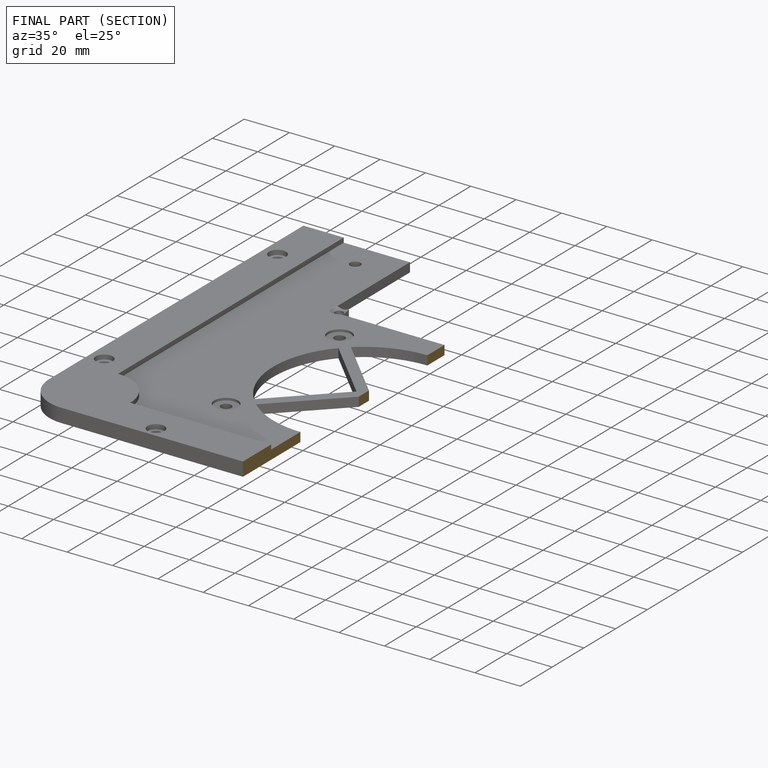
[diagram: finished part — half-section view (interior)]
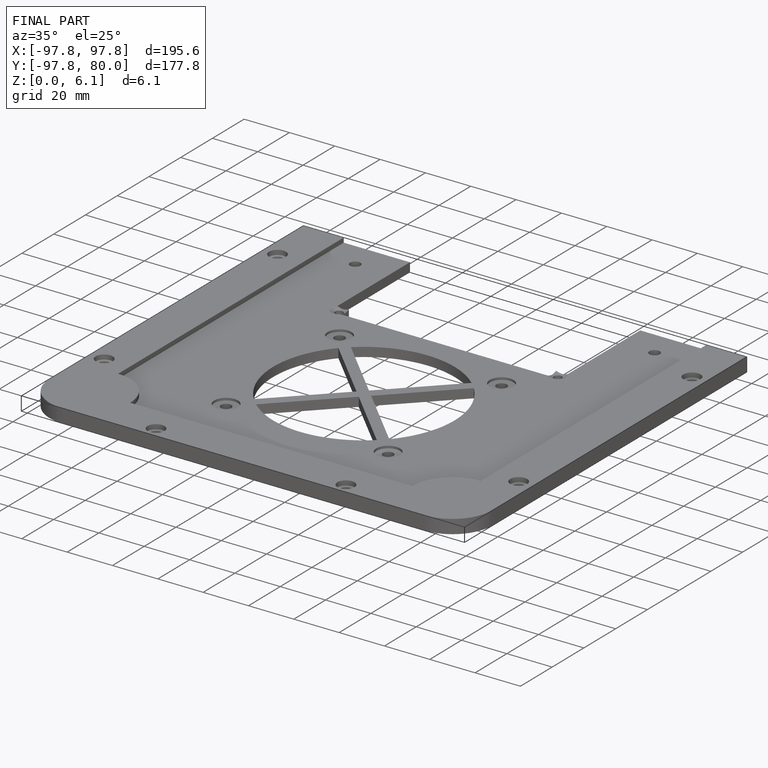
[diagram: finished part — iso view with bounding-box wireframe]
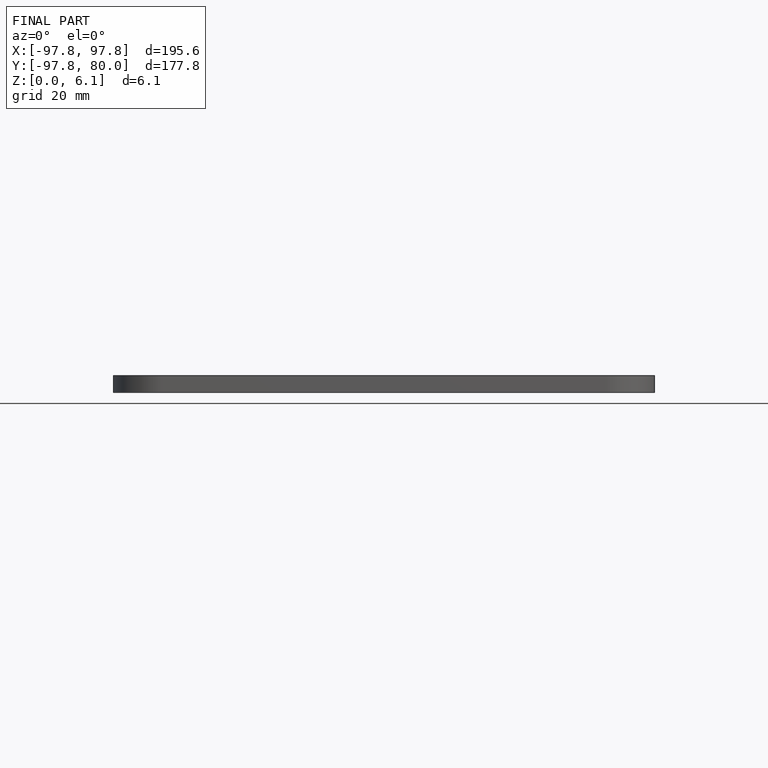
[diagram: finished part — front view with bounding-box wireframe]
